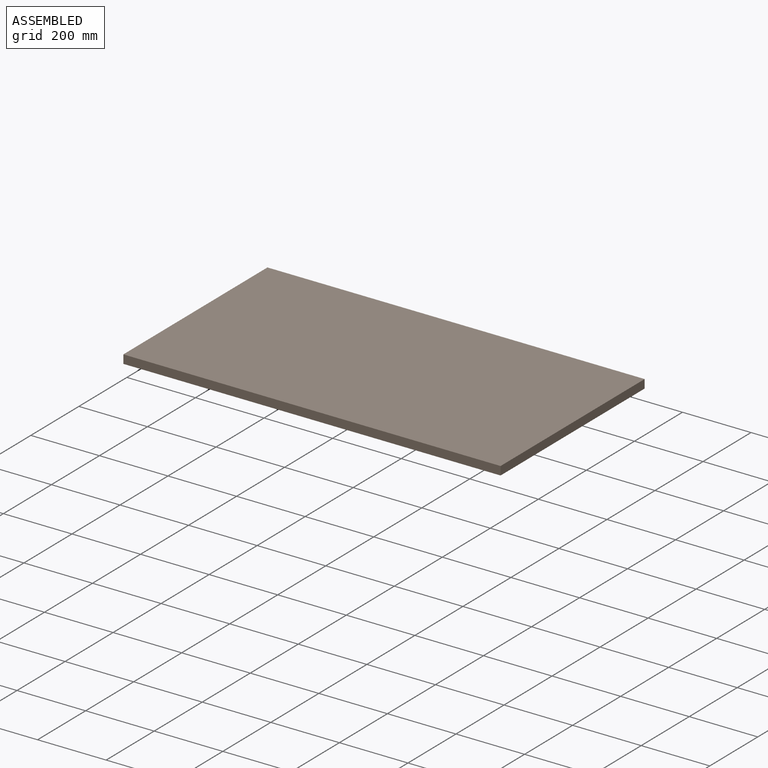
[diagram: assembled view]
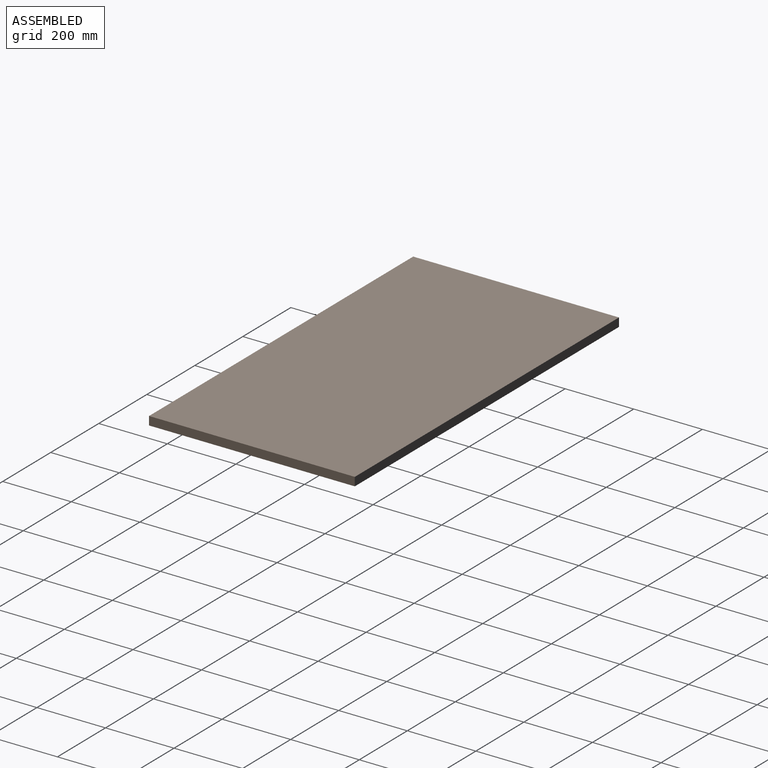
[diagram: assembled view, second angle]
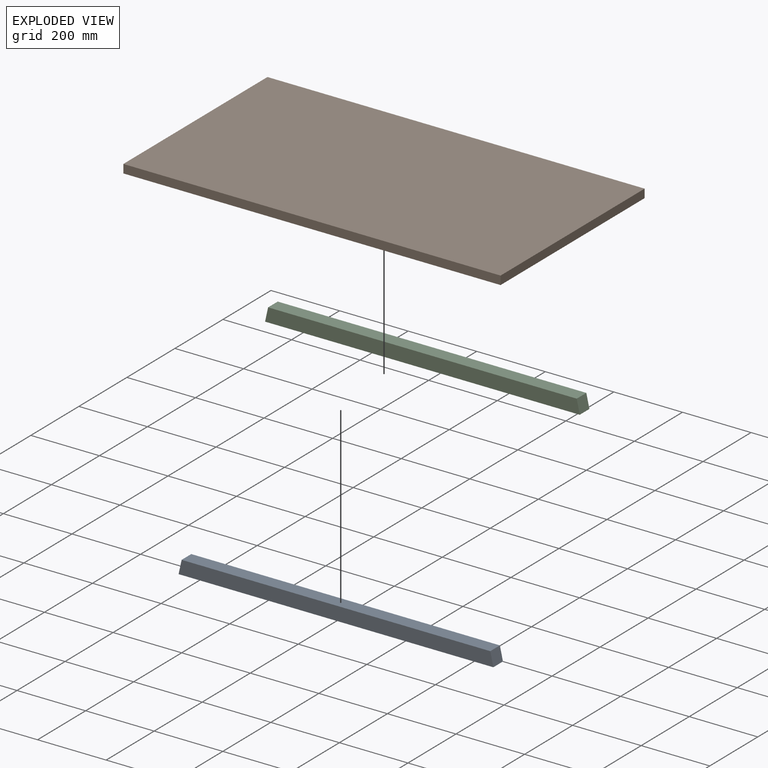
[diagram: exploded view]
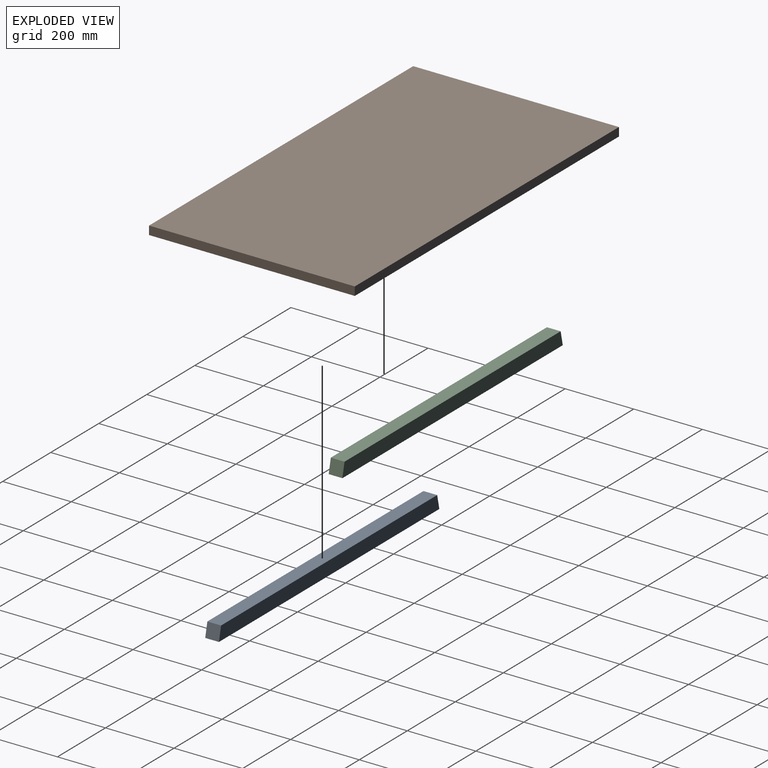
[diagram: exploded view, second angle]
ASSEMBLY  parts=3 mates=2
PART A: 6 faces, bbox 917.8x40x40 mm
  f0: plane 40x40mm, normal (-0.98,0,0.22), area 1639mm2, adj f1,f3,f4,f5
  f1: plane 917.78x40mm, normal (0,0,-1), area 36711.1mm2, adj f0,f2,f4,f5
  f2: plane 40x40mm, normal (0.98,0,0.22), area 1639mm2, adj f1,f3,f4,f5
  f3: plane 900x40mm, normal (0,0,1), area 36000mm2, adj f0,f2,f4,f5
  f4: plane 917.78x40mm, normal (0,-1,0), area 36355.6mm2, adj f0,f1,f2,f3
  f5: plane 917.78x40mm, normal (0,1,0), area 36355.6mm2, adj f0,f1,f2,f3
PART B: 11 faces, bbox 600x1100x26 mm
  f0: plane 1100x600mm, normal (0,0,-1), area 300000mm2, adj f1,f2,f3,f4,f6,f7,f8,f9
  f1: plane 600x25mm, normal (0,1,0), area 15000mm2, adj f0,f2,f4,f5
  f2: plane 1100x25mm, normal (-1,0,0), area 27500mm2, adj f0,f1,f3,f5
  f3: plane 600x25mm, normal (0,-1,0), area 15000mm2, adj f0,f2,f4,f5
  f4: plane 1100x25mm, normal (1,0,0), area 27500mm2, adj f0,f1,f3,f5
  f5: plane 1100x600mm, normal (0,0,1), area 660000mm2, adj f1,f2,f3,f4
  f6: plane 400x1mm, normal (0,1,0), area 400mm2, adj f0,f7,f9,f10
  f7: plane 900x1mm, normal (1,0,0), area 900mm2, adj f0,f6,f8,f10
  f8: plane 400x1mm, normal (0,-1,0), area 400mm2, adj f0,f7,f9,f10
  f9: plane 900x1mm, normal (-1,0,0), area 900mm2, adj f0,f6,f8,f10
  f10: plane 900x400mm, normal (0,0,-1), area 360000mm2, adj f6,f7,f8,f9
PART C: same geometry as A
PLACE A t=(-308.58,-33.07,-149.75)mm
PLACE B rot(axis=(0,0,1),90deg) t=(-79.74,125.91,301.25)mm
PLACE C t=(-308.58,326.93,-148.75)mm
MATE fastened C.f3 <-> B.f0  axis (0,0,1) through (-178.83,326.93,301.25)mm
MATE fastened B.f10 <-> A.f3  axis (0,0,-1) through (-178.83,-73.07,300.25)mm
